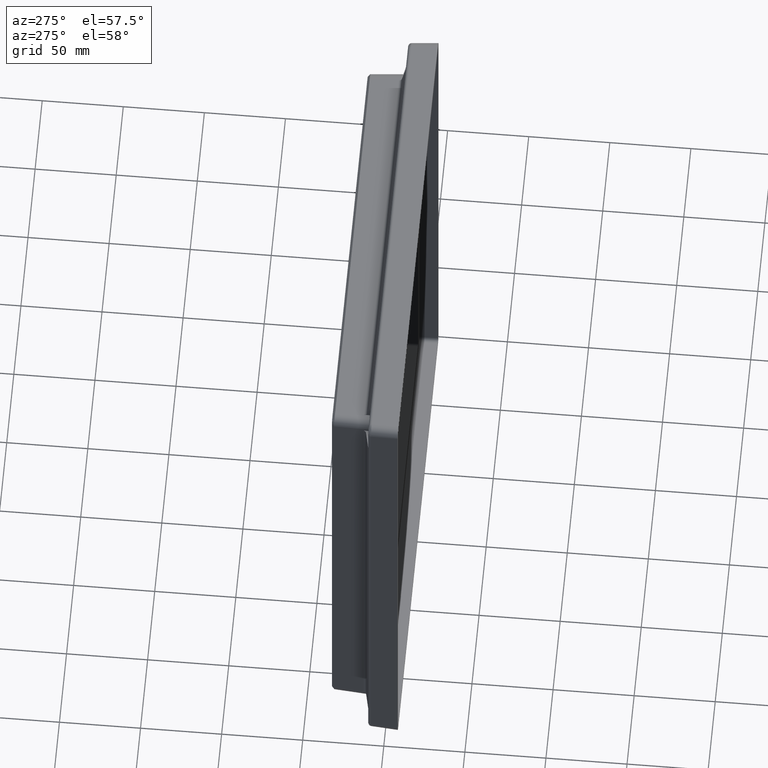
[diagram: clean part render]
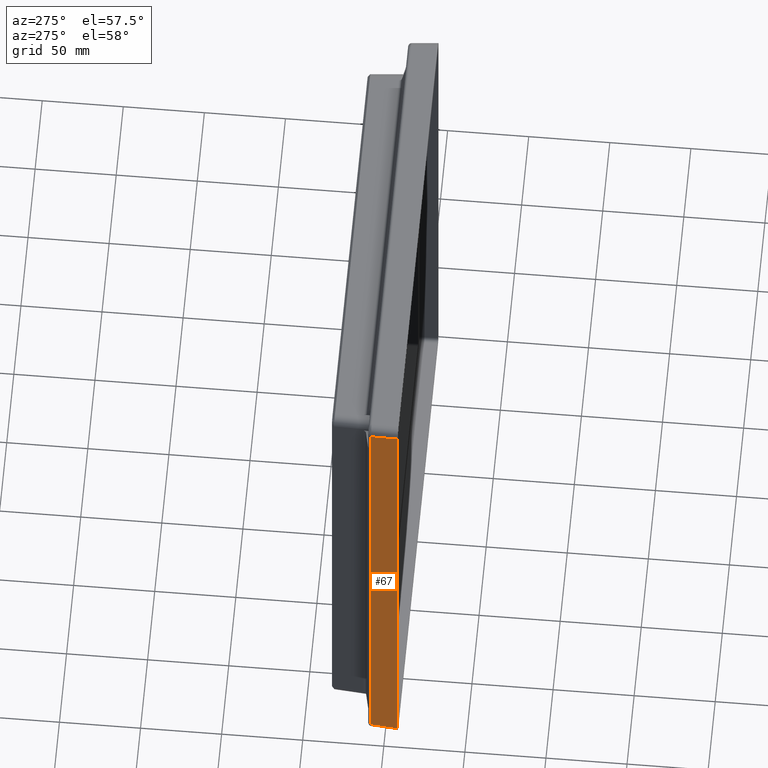
[diagram: same view with one face highlighted and labeled with its STEP entity id]
A machine part, auxiliary view. The second image highlights one B-rep face of the part: STEP entity #67.
In plain terms, the highlighted planar face has unit normal (-0.9986, 0.0523, 0).
Its self-contained STEP definition (entity closure, byte-faithful):
#67 = ADVANCED_FACE ( 'NONE', ( #6254 ), #1020, .T. ) ;
#342 =( BOUNDED_CURVE ( )  B_SPLINE_CURVE ( 3, ( #4935, #2637, #1572, #1070 ),
 .UNSPECIFIED., .F., .F. ) 
 B_SPLINE_CURVE_WITH_KNOTS ( ( 4, 4 ),
 ( 1.890229128489396600, 1.936731009849346700 ),
 .UNSPECIFIED. ) 
 CURVE ( )  GEOMETRIC_REPRESENTATION_ITEM ( )  RATIONAL_B_SPLINE_CURVE ( ( 1.000000000000000000, 0.9998198060372166500, 0.9998198060372166500, 1.000000000000000000 ) ) 
 REPRESENTATION_ITEM ( '' )  );
#365 = CARTESIAN_POINT ( 'NONE',  ( -143.4062397905034900, 8.467449213979881200, -163.4964257797896000 ) ) ;
#373 = CARTESIAN_POINT ( 'NONE',  ( -144.2692622342642600, -7.999999999999996400, 170.5000000000000900 ) ) ;
#459 = DIRECTION ( 'NONE',  ( -0.05233595624294395300, -0.9986295347545739400, 0.0000000000000000000 ) ) ;
#511 = VERTEX_POINT ( 'NONE', #2203 ) ;
#618 = CARTESIAN_POINT ( 'NONE',  ( -143.4062397905034600, 8.467449213979877600, -164.4662624004989500 ) ) ;
#681 = EDGE_CURVE ( 'NONE', #1113, #1896, #4556, .T. ) ;
#869 = LINE ( 'NONE', #373, #1185 ) ;
#951 = DIRECTION ( 'NONE',  ( -0.9986295347545739400, 0.05233595624294395300, 4.876986081621271200E-016 ) ) ;
#998 = VERTEX_POINT ( 'NONE', #6274 ) ;
#1020 = PLANE ( 'NONE',  #4572 ) ;
#1070 = CARTESIAN_POINT ( 'NONE',  ( -143.4062397905033200, 8.467449213979877600, 162.9651442959592500 ) ) ;
#1113 = VERTEX_POINT ( 'NONE', #2526 ) ;
#1185 = VECTOR ( 'NONE', #1820, 1000.000000000000000 ) ;
#1380 = CARTESIAN_POINT ( 'NONE',  ( -144.2692622342642600, -7.999999999999996400, 165.4267997931142700 ) ) ;
#1572 = CARTESIAN_POINT ( 'NONE',  ( -143.4062397905033200, 8.467449213979881200, 163.4964257797896600 ) ) ;
#1632 = DIRECTION ( 'NONE',  ( -4.883509368602220400E-016, 3.236644490571431700E-019, -1.000000000000000000 ) ) ;
#1708 = ORIENTED_EDGE ( 'NONE', *, *, #2007, .T. ) ;
#1820 = DIRECTION ( 'NONE',  ( -4.883678993952300100E-016, -0.0000000000000000000, -1.000000000000000000 ) ) ;
#1890 = ORIENTED_EDGE ( 'NONE', *, *, #5903, .F. ) ;
#1896 = VERTEX_POINT ( 'NONE', #5848 ) ;
#2007 = EDGE_CURVE ( 'NONE', #6000, #998, #3065, .T. ) ;
#2056 = EDGE_CURVE ( 'NONE', #511, #1113, #3732, .T. ) ;
#2203 = CARTESIAN_POINT ( 'NONE',  ( -143.4062397905033200, 8.467449213979877600, 162.9651442959592500 ) ) ;
#2252 = VECTOR ( 'NONE', #5322, 1000.000000000000200 ) ;
#2309 = VECTOR ( 'NONE', #1632, 1000.000000000000000 ) ;
#2487 = EDGE_CURVE ( 'NONE', #1896, #2680, #5569, .T. ) ;
#2526 = CARTESIAN_POINT ( 'NONE',  ( -143.4062397905034600, 8.467449213979877600, -162.9651442959592200 ) ) ;
#2532 = ORIENTED_EDGE ( 'NONE', *, *, #2056, .T. ) ;
#2637 = CARTESIAN_POINT ( 'NONE',  ( -143.4067182137448800, 8.458320354713363200, 164.0298779261431200 ) ) ;
#2680 = VERTEX_POINT ( 'NONE', #5030 ) ;
#2950 = CARTESIAN_POINT ( 'NONE',  ( -143.8650030478362400, -0.2862752064970359700, 165.0225406066862500 ) ) ;
#2971 = DIRECTION ( 'NONE',  ( 0.05226442768871400500, 0.9972646886342372300, -0.05226442768871403900 ) ) ;
#3065 = LINE ( 'NONE', #2950, #4174 ) ;
#3416 = CARTESIAN_POINT ( 'NONE',  ( -142.9335375408809600, 17.48714545162349800, -164.0910750997306900 ) ) ;
#3732 = LINE ( 'NONE', #618, #2309 ) ;
#3738 = CARTESIAN_POINT ( 'NONE',  ( -143.4076748016011600, 8.440067571076294700, -164.5652123604509100 ) ) ;
#3788 = CARTESIAN_POINT ( 'NONE',  ( -143.4062397905034600, 8.467449213979877600, -162.9651442959592200 ) ) ;
#4174 = VECTOR ( 'NONE', #2971, 1000.000000000000200 ) ;
#4347 = CARTESIAN_POINT ( 'NONE',  ( -143.8499999999999100, 0.0000000000000000000, 170.5000000000000900 ) ) ;
#4556 =( BOUNDED_CURVE ( )  B_SPLINE_CURVE ( 3, ( #3788, #365, #5226, #3738 ),
 .UNSPECIFIED., .F., .F. ) 
 B_SPLINE_CURVE_WITH_KNOTS ( ( 4, 4 ),
 ( 4.346454297330241800, 4.392956178690188700 ),
 .UNSPECIFIED. ) 
 CURVE ( )  GEOMETRIC_REPRESENTATION_ITEM ( )  RATIONAL_B_SPLINE_CURVE ( ( 1.000000000000000000, 0.9998198060372166500, 0.9998198060372166500, 1.000000000000000000 ) ) 
 REPRESENTATION_ITEM ( '' )  );
#4569 = EDGE_LOOP ( 'NONE', ( #2532, #4964, #5872, #1890, #1708, #6269 ) ) ;
#4572 = AXIS2_PLACEMENT_3D ( 'NONE', #4347, #951, #459 ) ;
#4935 = CARTESIAN_POINT ( 'NONE',  ( -143.4076748016009900, 8.440067571076294700, 164.5652123604510300 ) ) ;
#4964 = ORIENTED_EDGE ( 'NONE', *, *, #681, .T. ) ;
#5030 = CARTESIAN_POINT ( 'NONE',  ( -144.2692622342644300, -7.999999999999996400, -165.4267997931140700 ) ) ;
#5068 = EDGE_CURVE ( 'NONE', #998, #511, #342, .T. ) ;
#5226 = CARTESIAN_POINT ( 'NONE',  ( -143.4067182137450500, 8.458320354713361400, -164.0298779261430000 ) ) ;
#5322 = DIRECTION ( 'NONE',  ( -0.05226442768871405300, -0.9972646886342372300, -0.05226442768871403900 ) ) ;
#5569 = LINE ( 'NONE', #3416, #2252 ) ;
#5848 = CARTESIAN_POINT ( 'NONE',  ( -143.4076748016011600, 8.440067571076294700, -164.5652123604509100 ) ) ;
#5872 = ORIENTED_EDGE ( 'NONE', *, *, #2487, .T. ) ;
#5903 = EDGE_CURVE ( 'NONE', #6000, #2680, #869, .T. ) ;
#6000 = VERTEX_POINT ( 'NONE', #1380 ) ;
#6254 = FACE_OUTER_BOUND ( 'NONE', #4569, .T. ) ;
#6269 = ORIENTED_EDGE ( 'NONE', *, *, #5068, .T. ) ;
#6274 = CARTESIAN_POINT ( 'NONE',  ( -143.4076748016009900, 8.440067571076294700, 164.5652123604510300 ) ) ;